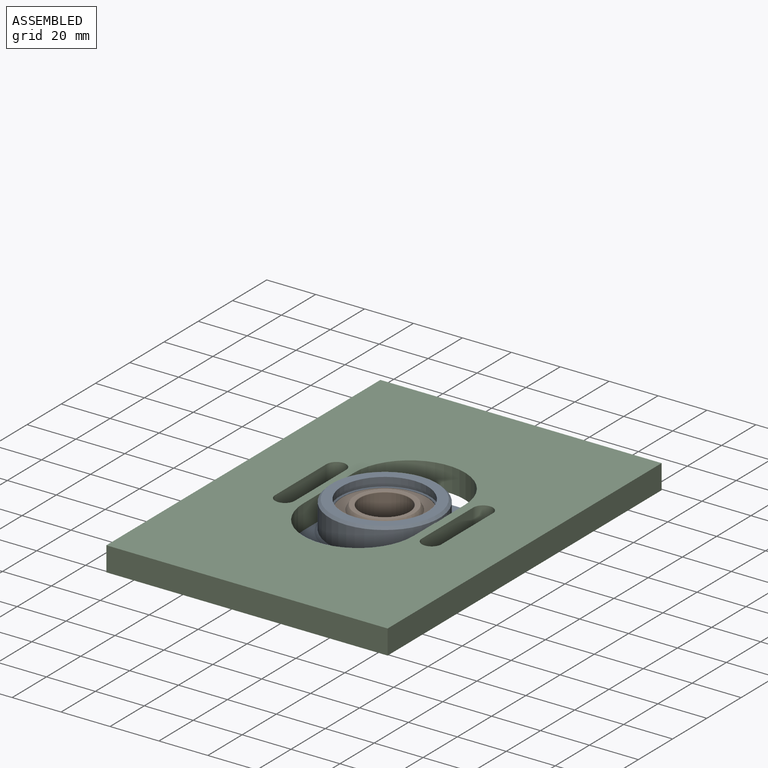
[diagram: assembled view]
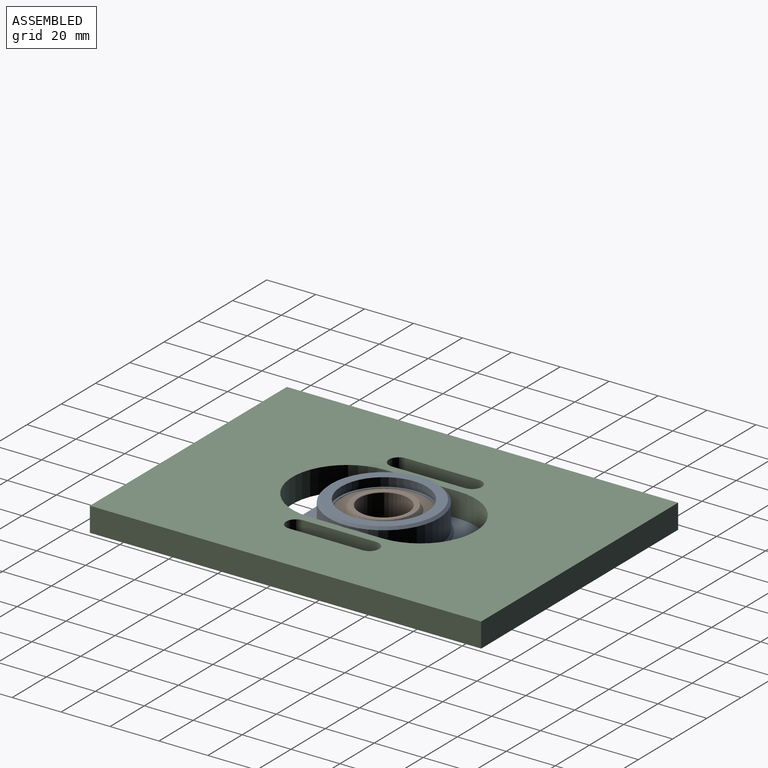
[diagram: assembled view, second angle]
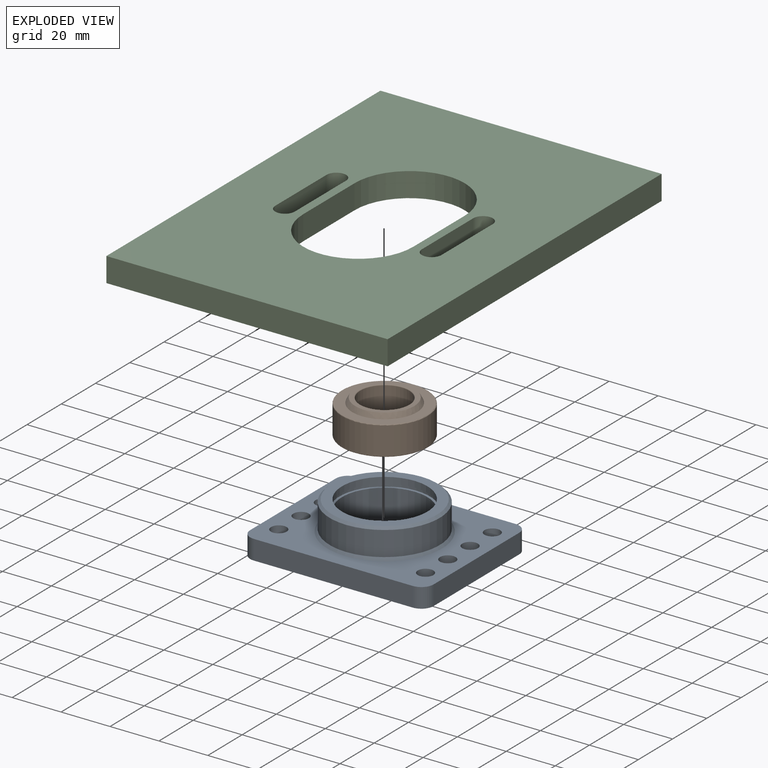
[diagram: exploded view]
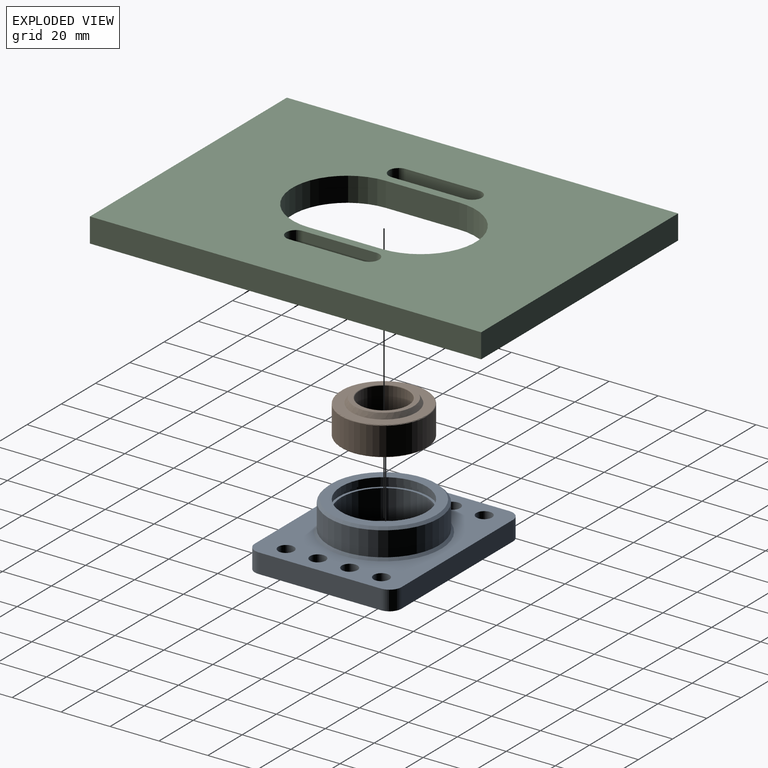
[diagram: exploded view, second angle]
ASSEMBLY  parts=3 mates=3
PART A: 31 faces, bbox 60x75x20 mm
  f0: plane 75x60mm, normal (0,0,1), area 2486.2mm2, adj f11,f12,f13,f14,f15,f16,f17,f18
  f1: plane 75x60mm, normal (0,0,-1), area 3416.9mm2, adj f11,f12,f13,f14,f15,f16,f17,f18
  f2: cylinder r=17.5mm len=35mm, axis (0,0,-1), area 1319.5mm2, adj f3,f10
  f3: plane 37x37mm, normal (0,0,1), area 113.1mm2, adj f2,f4
  f4: cylinder r=18.5mm len=37mm, axis (0,0,-1), area 174.4mm2, adj f3,f5
  f5: plane 37x37mm, normal (0,0,-1), area 113.1mm2, adj f4,f6
  f6: cylinder r=17.5mm len=35mm, axis (0,0,-1), area 274.9mm2, adj f5,f7
  f7: plane 43x43mm, normal (0,0,1), area 490.1mm2, adj f6,f22
  f8: cylinder r=22.5mm len=45mm, axis (0,0,-1), area 1413.7mm2, adj f21,f22
  f9: cylinder r=15mm len=30mm, axis (0,0,-1), area 188.5mm2, adj f19,f20
  f10: plane 35x35mm, normal (0,0,1), area 157.9mm2, adj f2,f19
  f11: plane 50x8mm, normal (0,-1,0), area 400mm2, adj f0,f1,f12,f18
  f12: cylinder r=5mm len=8mm, axis (0,0,1), area 62.8mm2, adj f0,f1,f11,f13
  f13: plane 65x8mm, normal (-1,0,0), area 520mm2, adj f0,f1,f12,f14
  f14: cylinder r=5mm len=8mm, axis (0,0,1), area 62.8mm2, adj f0,f1,f13,f15
  f15: plane 50x8mm, normal (0,1,0), area 400mm2, adj f0,f1,f14,f16
  f16: cylinder r=5mm len=8mm, axis (0,0,1), area 62.8mm2, adj f0,f1,f15,f17
  f17: plane 65x8mm, normal (1,0,0), area 520mm2, adj f0,f1,f16,f18
  f18: cylinder r=5mm len=8mm, axis (0,0,1), area 62.8mm2, adj f0,f1,f11,f17
  f19: cone r=16mm half-angle=45deg, axis (0,0,1), area 137.7mm2, adj f9,f10
  f20: cone r=15mm half-angle=45deg, axis (0,0,-1), area 137.7mm2, adj f1,f9
  f21: cone r=23.5mm half-angle=45deg, axis (0,0,-1), area 204.4mm2, adj f0,f8
  f22: cone r=22.5mm half-angle=45deg, axis (0,0,-1), area 195.5mm2, adj f7,f8
  f23: cylinder r=3.2mm len=8mm, axis (0,0,1), area 160.8mm2, adj f0,f1
  f24: cylinder r=3.2mm len=8mm, axis (0,0,1), area 160.8mm2, adj f0,f1
  f25: cylinder r=3.2mm len=8mm, axis (0,0,1), area 160.8mm2, adj f0,f1
  f26: cylinder r=3.2mm len=8mm, axis (0,0,1), area 160.8mm2, adj f0,f1
  f27: cylinder r=3.2mm len=8mm, axis (0,0,1), area 160.8mm2, adj f0,f1
  f28: cylinder r=3.2mm len=8mm, axis (0,0,1), area 160.8mm2, adj f0,f1
  f29: cylinder r=3.2mm len=8mm, axis (0,0,1), area 160.8mm2, adj f0,f1
  f30: cylinder r=3.2mm len=8mm, axis (0,0,1), area 160.8mm2, adj f0,f1
PART B: 12 faces, bbox 37.9x29x37.9 mm
  f0: sphere r=14.5mm, area 182.2mm2, adj f5,f10
  f1: torus R=10.3mm, axis (0,-1,0), area 29.9mm2, adj f2,f6
  f2: cylinder r=10mm len=20mm, axis (0,-1,0), area 967.6mm2, adj f1,f3
  f3: torus R=10.3mm, axis (0,-1,0), area 29.9mm2, adj f2,f5
  f4: sphere r=14.5mm, area 182.2mm2, adj f6,f11
  f5: plane 24.19x24.19mm, normal (0,-1,0), area 126.2mm2, adj f0,f3
  f6: plane 24.19x24.19mm, normal (0,1,0), area 126.2mm2, adj f1,f4
  f7: torus R=17.2mm, axis (0,-1,0), area 51.5mm2, adj f8,f10
  f8: cylinder r=17.5mm len=35mm, axis (0,-1,0), area 1253.5mm2, adj f7,f9
  f9: torus R=17.2mm, axis (0,-1,0), area 51.5mm2, adj f8,f11
  f10: plane 34.4x34.4mm, normal (0,-1,0), area 382mm2, adj f0,f7
  f11: plane 34.4x34.4mm, normal (0,1,0), area 382mm2, adj f4,f9
PART C: 18 faces, bbox 115x160x10 mm
  f0: cylinder r=22.5mm len=45mm, axis (0,0,-1), area 706.9mm2, adj f1,f7,f8,f9
  f1: plane 30x10mm, normal (-1,0,0), area 300mm2, adj f0,f2,f8,f9
  f2: cylinder r=22.5mm len=45mm, axis (0,0,-1), area 706.9mm2, adj f1,f7,f8,f9
  f3: plane 160x10mm, normal (1,0,0), area 1600mm2, adj f4,f6,f8,f9
  f4: plane 115x10mm, normal (0,1,0), area 1150mm2, adj f3,f5,f8,f9
  f5: plane 160x10mm, normal (-1,0,0), area 1600mm2, adj f4,f6,f8,f9
  f6: plane 115x10mm, normal (0,-1,0), area 1150mm2, adj f3,f5,f8,f9
  f7: plane 30x10mm, normal (1,0,0), area 300mm2, adj f0,f2,f8,f9
  f8: plane 160x115mm, normal (0,0,1), area 14879mm2, adj f0,f1,f2,f3,f4,f5,f6,f7
  f9: plane 160x115mm, normal (0,0,-1), area 14879mm2, adj f0,f1,f2,f3,f4,f5,f6,f7
  f10: plane 30x10mm, normal (-1,0,0), area 300mm2, adj f8,f9,f11,f13
  f11: cylinder r=4mm len=10mm, axis (0,0,1), area 125.7mm2, adj f8,f9,f10,f12
  f12: plane 30x10mm, normal (1,0,0), area 300mm2, adj f8,f9,f11,f13
  f13: cylinder r=4mm len=10mm, axis (0,0,1), area 125.7mm2, adj f8,f9,f10,f12
  f14: plane 30x10mm, normal (1,0,0), area 300mm2, adj f8,f9,f15,f17
  f15: cylinder r=4mm len=10mm, axis (0,0,1), area 125.7mm2, adj f8,f9,f14,f16
  f16: plane 30x10mm, normal (-1,0,0), area 300mm2, adj f8,f9,f15,f17
  f17: cylinder r=4mm len=10mm, axis (0,0,1), area 125.7mm2, adj f8,f9,f14,f16
PLACE A rot(axis=(0,0,-1),90deg) t=(0.21,0.12,-8.05)mm
PLACE B rot(axis=(-1,0,0),90deg) t=(0.21,0.12,1.95)mm
PLACE C at identity fixed
MATE planar B.f1 <-> A.f2  axis (0,0,1) through (0.21,0.12,7.95)mm
MATE slider A.f2 <-> B.f2  axis (0,0,-1) through (0.21,0.12,1.95)mm
MATE parallel A.f12 <-> C.f9  axis (0,0,1) through (-32.29,25.12,-0.05)mm
